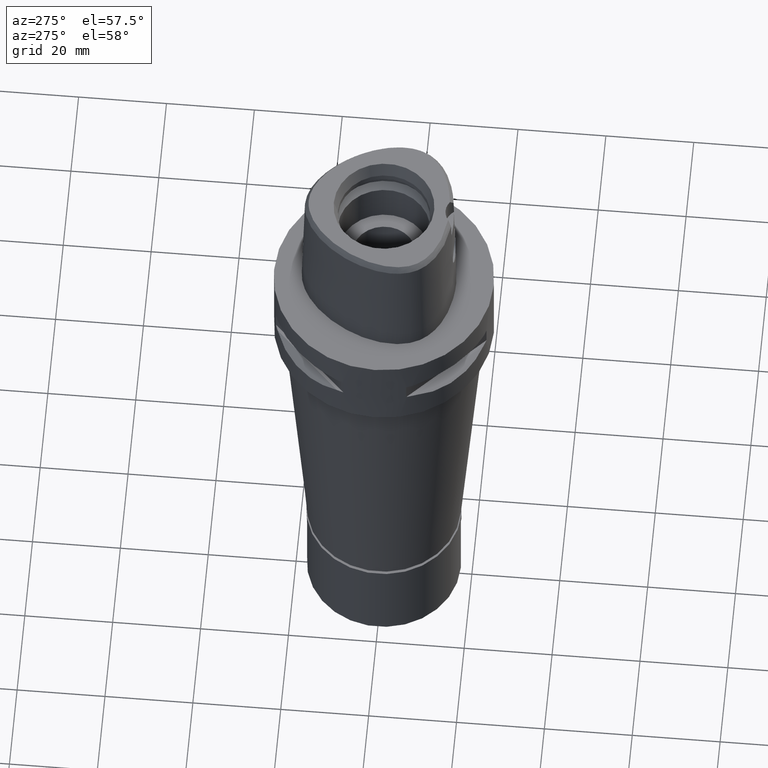
[diagram: clean part render]
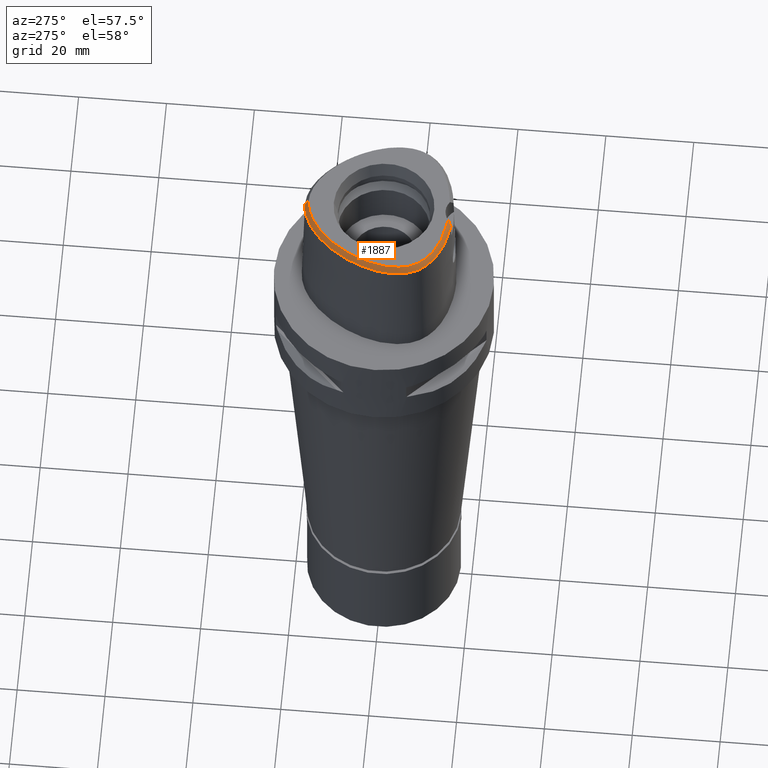
[diagram: same view with one face highlighted and labeled with its STEP entity id]
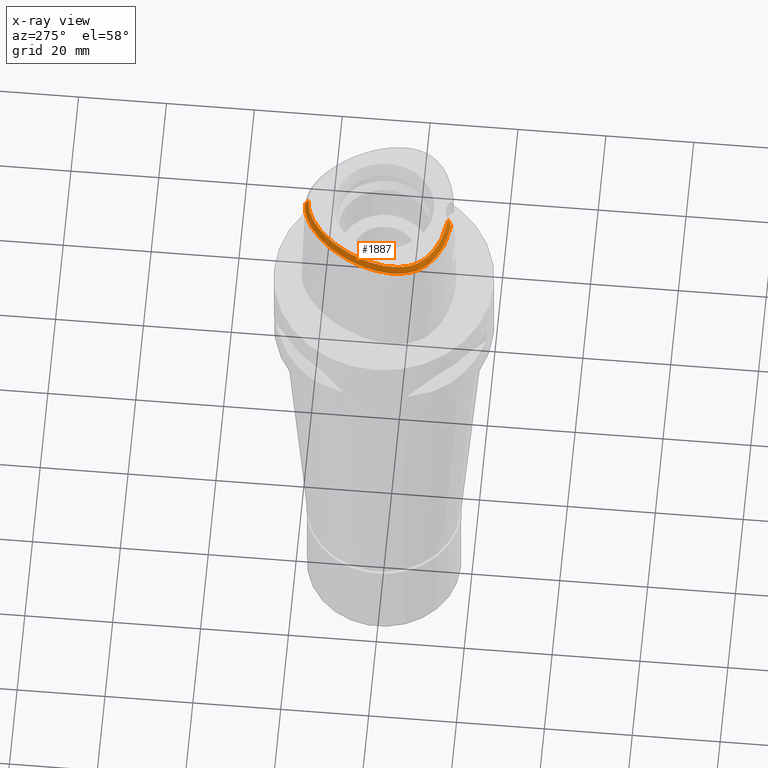
[diagram: x-ray of the same camera — body ghosted, the highlighted face saturated]
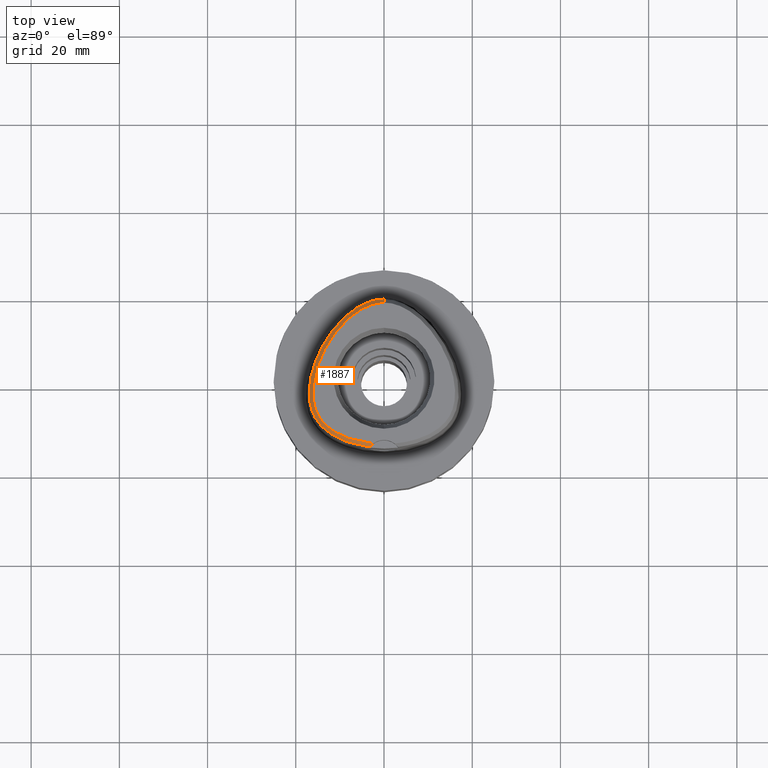
[diagram: same view with one face highlighted and labeled with its STEP entity id]
A machine part, auxiliary view. The second image highlights one B-rep face of the part: STEP entity #1887.
The next image is the same camera in x-ray: the body ghosted, the highlighted face saturated — about 0% of this face is hidden behind the body in this view.
A second angle (top view) of the same face is appended — the face is thin or edge-on in the first view.
In plain terms, the highlighted face is a freeform B-spline surface patch.
Its self-contained STEP definition (entity closure, byte-faithful):
#18 = CARTESIAN_POINT ( 'NONE',  ( -7.639779131636999843, 13.77262590923000118, 30.16755057703000276 ) ) ;
#42 = CARTESIAN_POINT ( 'NONE',  ( -5.210497867991000120, 15.50538924658000006, 30.16754997332999721 ) ) ;
#55 = CARTESIAN_POINT ( 'NONE',  ( -7.523733151595044966, 15.26501052509501477, 28.52071192347001727 ) ) ;
#64 = CARTESIAN_POINT ( 'NONE',  ( -9.846445204711999466, 12.60582307778999933, 28.95792110541999875 ) ) ;
#81 = CARTESIAN_POINT ( 'NONE',  ( -5.632414951356000898, -15.25944411046999960, 28.35310572205999691 ) ) ;
#86 = CARTESIAN_POINT ( 'NONE',  ( -1.823276377017999828, 17.21188074159000081, 29.56273537917000027 ) ) ;
#110 = CARTESIAN_POINT ( 'NONE',  ( -12.89654178714999944, 7.995817438980999725, 29.56273529346999851 ) ) ;
#131 = CARTESIAN_POINT ( 'NONE',  ( -15.10082545737000181, 4.330498760987000040, 28.95791983322999741 ) ) ;
#134 = CARTESIAN_POINT ( 'NONE',  ( -13.18915979441498010, -10.65722997876661893, 30.00000000000300560 ) ) ;
#155 = CARTESIAN_POINT ( 'NONE',  ( -16.03151795269000246, -3.534428194271999946, 30.16755060849999737 ) ) ;
#180 = CARTESIAN_POINT ( 'NONE',  ( -16.66794665513000240, -4.421519624942999549, 28.95792058958000226 ) ) ;
#202 = CARTESIAN_POINT ( 'NONE',  ( -16.28461055573999872, -1.630954051201000121, 29.56273514257000201 ) ) ;
#227 = CARTESIAN_POINT ( 'NONE',  ( -15.82868006878000067, -7.952737281584000506, 28.95792018566999815 ) ) ;
#261 = CARTESIAN_POINT ( 'NONE',  ( -14.68301384047999925, -8.695764281007001273, 30.16755062074999927 ) ) ;
#286 = CARTESIAN_POINT ( 'NONE',  ( -16.38696586428000046, -7.458126248342999531, 28.35310487737000074 ) ) ;
#316 = CARTESIAN_POINT ( 'NONE',  ( -12.58326865087000002, -12.34321894151999821, 28.35310542868999661 ) ) ;
#337 = CARTESIAN_POINT ( 'NONE',  ( -9.710311512310999760, -12.84306151673999885, 30.16755066037999811 ) ) ;
#338 = CARTESIAN_POINT ( 'NONE',  ( -16.12543283908568270, -3.535877041748258343, 30.00000000000216716 ) ) ;
#343 = CARTESIAN_POINT ( 'NONE',  ( 0.3016676591158000131, 17.05531115649999663, 30.16755063117999924 ) ) ;
#365 = CARTESIAN_POINT ( 'NONE',  ( -5.552509327625999802, 16.09091101313000038, 28.95792405463999941 ) ) ;
#382 = CARTESIAN_POINT ( 'NONE',  ( -2.458047802172000029, -15.72790595030999761, 28.35310552934999961 ) ) ;
#388 = CARTESIAN_POINT ( 'NONE',  ( -5.723515057443000487, 16.38367189639999921, 28.35311109529000362 ) ) ;
#408 = CARTESIAN_POINT ( 'NONE',  ( -3.152079676332999902, -14.97894746234999985, 29.56273546096000260 ) ) ;
#416 = CARTESIAN_POINT ( 'NONE',  ( -5.381503597807999917, 15.79815012984999889, 29.56273701398000142 ) ) ;
#434 = CARTESIAN_POINT ( 'NONE',  ( -1.990649989869999859, -15.76438362355999878, 28.35310551737000040 ) ) ;
#440 = CARTESIAN_POINT ( 'NONE',  ( -3.734971165628999668, 16.24915067615000197, 30.16755053581000112 ) ) ;
#452 = CARTESIAN_POINT ( 'NONE',  ( -3.738627773282205080, -15.49270868799680301, 28.52071192347001727 ) ) ;
#461 = CARTESIAN_POINT ( 'NONE',  ( -0.5613335724047000541, 17.04642045710999909, 30.16755065579999950 ) ) ;
#477 = CARTESIAN_POINT ( 'NONE',  ( -16.85489160761523664, -5.354527567564993262, 28.52071192347001727 ) ) ;
#484 = CARTESIAN_POINT ( 'NONE',  ( -15.63320202522000280, 1.721486809195999834, 29.56273623881000034 ) ) ;
#509 = CARTESIAN_POINT ( 'NONE',  ( -11.84930031526000072, 9.007999783756998724, 30.16755050273000194 ) ) ;
#512 = CARTESIAN_POINT ( 'NONE',  ( -8.809985523416104414, -13.33678107331211038, 30.00000000000050093 ) ) ;
#528 = CARTESIAN_POINT ( 'NONE',  ( -16.62179471705999845, -1.595620894735999995, 28.95791959471999633 ) ) ;
#555 = CARTESIAN_POINT ( 'NONE',  ( -14.47185990318000037, 4.077357645241000306, 30.16755065205999742 ) ) ;
#558 = CARTESIAN_POINT ( 'NONE',  ( -15.29229544369395022, -7.721097396977294913, 29.99999999999280220 ) ) ;
#579 = CARTESIAN_POINT ( 'NONE',  ( -13.60082244959999898, 6.750709203679999604, 29.56273539016000029 ) ) ;
#603 = CARTESIAN_POINT ( 'NONE',  ( -7.962095281401999181, -14.27055544569000212, 28.95792202591999853 ) ) ;
#619 = EDGE_CURVE ( 'NONE', #4483, #4556, #1121, .T. ) ;
#633 = CARTESIAN_POINT ( 'NONE',  ( -13.35638512230000075, -10.83648599571000126, 29.56273525271999603 ) ) ;
#663 = CARTESIAN_POINT ( 'NONE',  ( -13.59488471462000092, -10.11923557399999929, 30.16755064084999916 ) ) ;
#687 = CARTESIAN_POINT ( 'NONE',  ( -12.59263163459000090, -11.05462559839000036, 30.16755064872999981 ) ) ;
#689 = CARTESIAN_POINT ( 'NONE',  ( -15.02099409650743134, 2.867135356160664728, 29.99999999999567279 ) ) ;
#711 = CARTESIAN_POINT ( 'NONE',  ( -15.74742351977999988, -7.232438932254999564, 29.56273536307000072 ) ) ;
#714 = CARTESIAN_POINT ( 'NONE',  ( -14.55898035934633761, 4.112421202110880358, 29.99999999999424460 ) ) ;
#718 = CARTESIAN_POINT ( 'NONE',  ( 0.5143060122256000177, 18.06220053667999892, 28.35310427733000083 ) ) ;
#757 = CARTESIAN_POINT ( 'NONE',  ( -6.806069691345999928, 14.44045714880000020, 30.16755069746999851 ) ) ;
#764 = VERTEX_POINT ( 'NONE', #1832 ) ;
#766 = B_SPLINE_CURVE_WITH_KNOTS ( 'NONE', 3,
 ( #3946, #4020, #4751, #1749, #3223, #4349, #2838, #512, #1310, #2049, #923, #2464, #3272, #134, #3992, #1678, #4797, #3199, #4726, #558, #3620, #1286, #2892, #978, #3345, #338, #2619, #1800, #3399, #2641, #3002, #689, #714, #4151, #1445, #4528, #1472, #2538, #2971, #1873, #4847, #4901, #2568, #2942, #4504, #1518, #4476, #4071, #1415, #4100, #3751, #1001, #1063, #4451 ),
 .UNSPECIFIED., .F., .F.,
 ( 4, 1, 1, 1, 1, 1, 1, 1, 1, 1, 1, 1, 1, 1, 1, 1, 1, 1, 1, 1, 1, 1, 1, 1, 1, 1, 1, 1, 1, 1, 1, 1, 1, 1, 1, 1, 1, 1, 1, 1, 1, 1, 1, 1, 1, 1, 1, 1, 1, 1, 1, 4 ),
 ( 0.0000000000000000000, 0.005566907331700066131, 0.02545556918509994659, 0.04534423103860008020, 0.06523289289190004059, 0.08512155474529992105, 0.1050102165987000236, 0.1248988784521999351, 0.1447875403055000065, 0.1646762021588999980, 0.1845648640122999895, 0.2044535258655999499, 0.2243421877191000835, 0.2442308495724999640, 0.2641195114257999244, 0.2840081732792000269, 0.3038968351325999073, 0.3237854969860000098, 0.3436741588394000013, 0.3635628206927999928, 0.3834514825461999843, 0.4033401443995000557, 0.4232288062529999673, 0.4431174681064000698, 0.4630061299597000302, 0.4828947918130999106, 0.5027834536666000442, 0.5226721155199000046, 0.5425607773732999961, 0.5624494392267000986, 0.5823381010799999480, 0.6022267629334999706, 0.6221154247869000731, 0.6420040866403000646, 0.6618927484936000250, 0.6817814103470000164, 0.7016700722005000390, 0.7215587340537999994, 0.7414473959071999909, 0.7613360577605999824, 0.7812247196139999739, 0.8011133814673999654, 0.8210020433207999568, 0.8408907051741000283, 0.8607793670275000197, 0.8806680288810000423, 0.9005566907343299787, 0.9204453525877199782, 0.9403340144411099777, 0.9602226762944999772, 0.9801113381478899766, 1.000000000000000000 ),
 .UNSPECIFIED. ) ;
#778 = CARTESIAN_POINT ( 'NONE',  ( -2.427889251345999977, -15.39039848382999942, 28.95792053275999933 ) ) ;
#783 = CARTESIAN_POINT ( 'NONE',  ( -3.384816160101999927, 17.47624886148000201, 28.35310357406000037 ) ) ;
#806 = CARTESIAN_POINT ( 'NONE',  ( -4.609046972602000025, 16.21701338968999906, 29.56273667107000236 ) ) ;
#829 = CARTESIAN_POINT ( 'NONE',  ( -7.215083212366999454, 14.98125909569000136, 28.95791955081999802 ) ) ;
#850 = CARTESIAN_POINT ( 'NONE',  ( -16.27342963407000198, -6.693200545318000572, 28.95791988805000017 ) ) ;
#875 = CARTESIAN_POINT ( 'NONE',  ( -13.47765485641999916, 8.345064438473999147, 28.35310461522000125 ) ) ;
#899 = CARTESIAN_POINT ( 'NONE',  ( -14.93211420629000052, 2.836803727226000049, 30.16755063256999847 ) ) ;
#920 = CARTESIAN_POINT ( 'NONE',  ( -13.90017523472000072, 6.909783120898000064, 28.95792018476999985 ) ) ;
#923 = CARTESIAN_POINT ( 'NONE',  ( -11.36350786442183214, -12.05063008428340510, 29.99999999999580780 ) ) ;
#946 = CARTESIAN_POINT ( 'NONE',  ( -16.81324114178000073, -0.4670231989860000321, 28.35310569049000051 ) ) ;
#974 = CARTESIAN_POINT ( 'NONE',  ( -12.38585269803000166, -12.06755587250999895, 28.95792046907000028 ) ) ;
#978 = CARTESIAN_POINT ( 'NONE',  ( -15.99949242929648463, -5.153835065648535441, 30.00000000000461498 ) ) ;
#997 = CARTESIAN_POINT ( 'NONE',  ( -6.804410641952000738, -14.62331478059999945, 28.95792248176000072 ) ) ;
#1001 = CARTESIAN_POINT ( 'NONE',  ( -0.5679008307148614154, 17.14013367087316553, 29.99999999999713651 ) ) ;
#1032 = CARTESIAN_POINT ( 'NONE',  ( -15.42765234752999959, -7.119595274211000024, 30.16755060591999893 ) ) ;
#1061 = CARTESIAN_POINT ( 'NONE',  ( -13.02189219035000001, -11.57961736640000083, 28.95791985396999735 ) ) ;
#1063 = CARTESIAN_POINT ( 'NONE',  ( -0.1909045559979745676, 17.15328888648515360, 29.99999999999984723 ) ) ;
#1084 = CARTESIAN_POINT ( 'NONE',  ( -10.71727344415999994, -12.71267893831999984, 29.56273526993999923 ) ) ;
#1121 = B_SPLINE_CURVE_WITH_KNOTS ( 'NONE', 3,
 ( #4584, #1142, #2672, #3785 ),
 .UNSPECIFIED., .F., .F.,
 ( 4, 4 ),
 ( 0.0000000000000000000, 1.000000000000000000 ),
 .UNSPECIFIED. ) ;
#1136 = CARTESIAN_POINT ( 'NONE',  ( -3.045879743975000054, 16.51714670362999726, 30.16755073851999924 ) ) ;
#1140 = EDGE_CURVE ( 'NONE', #4483, #764, #766, .T. ) ;
#1142 = CARTESIAN_POINT ( 'NONE',  ( -2.674237912657983163, -15.00654602984668351, 29.59847415412357208 ) ) ;
#1152 = CARTESIAN_POINT ( 'NONE',  ( -2.157572310486000067, -15.75234476550999752, 28.35310553889999952 ) ) ;
#1160 = CARTESIAN_POINT ( 'NONE',  ( -8.725996232029000765, 13.25178579633000098, 29.56273599062000201 ) ) ;
#1176 = CARTESIAN_POINT ( 'NONE',  ( -3.191919535121999996, -15.31550604413000016, 28.95792035350999782 ) ) ;
#1183 = CARTESIAN_POINT ( 'NONE',  ( -9.599435430154999338, 12.37363609003999976, 29.56273577646999939 ) ) ;
#1201 = CARTESIAN_POINT ( 'NONE',  ( -15.58740380353674837, -8.999391780897031623, 28.52071192347001727 ) ) ;
#1212 = CARTESIAN_POINT ( 'NONE',  ( -10.72572252327999998, 11.61917264232999969, 28.95791961538999715 ) ) ;
#1213 = LINE ( 'NONE', #2745, #3466 ) ;
#1237 = CARTESIAN_POINT ( 'NONE',  ( -7.010576451856000091, 14.71085812223999945, 29.56273512415000226 ) ) ;
#1248 = CARTESIAN_POINT ( 'NONE',  ( -16.79165457291105668, -0.3537785057483363582, 28.52071192347001727 ) ) ;
#1258 = CARTESIAN_POINT ( 'NONE',  ( -15.57378198289999993, 3.055782720697999721, 28.95791995444999856 ) ) ;
#1282 = CARTESIAN_POINT ( 'NONE',  ( -12.60598525252000002, 7.821193939234999171, 30.16755063259000025 ) ) ;
#1286 = CARTESIAN_POINT ( 'NONE',  ( -15.71065119879044225, -6.536303815288952102, 29.99999999999154809 ) ) ;
#1299 = ORIENTED_EDGE ( 'NONE', *, *, #1140, .T. ) ;
#1301 = CARTESIAN_POINT ( 'NONE',  ( -16.47905549556985960, -6.962316292879828339, 28.52071192347001727 ) ) ;
#1307 = CARTESIAN_POINT ( 'NONE',  ( -17.00598922109999833, -4.447751773904000672, 28.35310561913999905 ) ) ;
#1310 = CARTESIAN_POINT ( 'NONE',  ( -9.750168658359122276, -12.92810664734103021, 30.00000000000341061 ) ) ;
#1329 = CARTESIAN_POINT ( 'NONE',  ( -15.78105460849999986, -5.852921262458000484, 30.16755065386999846 ) ) ;
#1359 = CARTESIAN_POINT ( 'NONE',  ( -15.94679730711999888, -6.602138875558999587, 29.56273526564999798 ) ) ;
#1380 = EDGE_LOOP ( 'NONE', ( #1299, #2438, #2977, #2947 ) ) ;
#1390 = CARTESIAN_POINT ( 'NONE',  ( -9.998059913266001075, -13.45704427179000007, 28.95791978155000024 ) ) ;
#1412 = CARTESIAN_POINT ( 'NONE',  ( -13.84216780035999861, -10.35125735799999980, 29.56273527190999673 ) ) ;
#1415 = CARTESIAN_POINT ( 'NONE',  ( -2.411640998825535398, 16.81591728050764445, 29.99999999999352696 ) ) ;
#1442 = CARTESIAN_POINT ( 'NONE',  ( -11.04110826670000023, -13.30843926314000036, 28.35310452662000102 ) ) ;
#1445 = CARTESIAN_POINT ( 'NONE',  ( -13.38439869301239682, 6.635703175839481105, 29.99999999999850431 ) ) ;
#1470 = CARTESIAN_POINT ( 'NONE',  ( -9.152316934488998967, -14.19411612484999985, 28.35310462320000369 ) ) ;
#1472 = CARTESIAN_POINT ( 'NONE',  ( -11.92713521269140209, 9.060544494662435611, 29.99999999999303668 ) ) ;
#1491 = CARTESIAN_POINT ( 'NONE',  ( -14.00782560703000001, -9.647379196538999224, 30.16755057970000209 ) ) ;
#1518 = CARTESIAN_POINT ( 'NONE',  ( -4.498660734198359989, 15.99814720005971225, 29.99999999999687361 ) ) ;
#1524 = CARTESIAN_POINT ( 'NONE',  ( -3.271837354725999791, 17.15654814219999835, 28.95791929554999911 ) ) ;
#1553 = CARTESIAN_POINT ( 'NONE',  ( -4.001654244337000677, 16.87264368793999836, 28.95792055620999861 ) ) ;
#1572 = CARTESIAN_POINT ( 'NONE',  ( -2.104707806306000073, -15.07672396741000043, 29.56273553871000104 ) ) ;
#1578 = CARTESIAN_POINT ( 'NONE',  ( -0.04216019817055000063, 17.40364861451999801, 29.56273536419999814 ) ) ;
#1592 = CARTESIAN_POINT ( 'NONE',  ( -13.75951393052779004, 7.944084103042361455, 28.52071192347001727 ) ) ;
#1603 = CARTESIAN_POINT ( 'NONE',  ( -10.09345497926999968, 12.83801006552999979, 28.35310643437000167 ) ) ;
#1629 = CARTESIAN_POINT ( 'NONE',  ( -1.892982786909999993, 17.54373329118000058, 28.95792015860000035 ) ) ;
#1652 = CARTESIAN_POINT ( 'NONE',  ( -14.54109007758000160, 5.622425361652999776, 28.95792058829000126 ) ) ;
#1674 = CARTESIAN_POINT ( 'NONE',  ( -15.95952690591000156, 1.813344835412999956, 28.95792220726000110 ) ) ;
#1678 = CARTESIAN_POINT ( 'NONE',  ( -14.08052509618156023, -9.706873108417822138, 29.99999999999365485 ) ) ;
#1699 = CARTESIAN_POINT ( 'NONE',  ( -16.70953585073999648, -3.544888138995999860, 28.95792010419999940 ) ) ;
#1724 = CARTESIAN_POINT ( 'NONE',  ( -16.57791086117000035, -5.235871008917999170, 28.95792000029000235 ) ) ;
#1746 = CARTESIAN_POINT ( 'NONE',  ( -12.69219310217999919, 9.577019070413999913, 28.35310589158000028 ) ) ;
#1749 = CARTESIAN_POINT ( 'NONE',  ( -4.150496093831221422, -14.59917355180221676, 30.00000000000014921 ) ) ;
#1770 = CARTESIAN_POINT ( 'NONE',  ( -14.92260353368000025, -9.564807021807999021, 28.95791987216999885 ) ) ;
#1797 = CARTESIAN_POINT ( 'NONE',  ( -16.13999362889000011, -8.087179310243000074, 28.35310498080999864 ) ) ;
#1800 = CARTESIAN_POINT ( 'NONE',  ( -16.04083576397482958, -1.656498942829153220, 29.99999999999758415 ) ) ;
#1820 = CARTESIAN_POINT ( 'NONE',  ( -14.27025234636999862, -9.862137147207999277, 29.56273543148000016 ) ) ;
#1832 = CARTESIAN_POINT ( 'NONE',  ( -6.301949014362000499E-11, 17.15328888647999861, 30.00000000000000000 ) ) ;
#1848 = CARTESIAN_POINT ( 'NONE',  ( -14.33673397182000109, -10.81530092600999993, 28.35310453401000075 ) ) ;
#1872 = CARTESIAN_POINT ( 'NONE',  ( -10.14193411373999965, -13.76403564931000112, 28.35310434213000264 ) ) ;
#1873 = CARTESIAN_POINT ( 'NONE',  ( -9.420854217683398701, 12.20577134109680451, 29.99999999999550226 ) ) ;
#1887 = ADVANCED_FACE ( 'NONE', ( #2603 ), #2526, .F. ) ;
#1900 = CARTESIAN_POINT ( 'NONE',  ( -9.193697530592999101, 13.74267279054000035, 28.35310724096000001 ) ) ;
#1923 = CARTESIAN_POINT ( 'NONE',  ( -0.04057199707807999933, 17.06459098961999743, 30.16755060548999978 ) ) ;
#1944 = CARTESIAN_POINT ( 'NONE',  ( -1.966279790551999751, -15.42642453240999956, 28.95792052518000048 ) ) ;
#1951 = CARTESIAN_POINT ( 'NONE',  ( -2.661459415975000020, 17.70479818808999894, 28.35310441543999715 ) ) ;
#1972 = CARTESIAN_POINT ( 'NONE',  ( -8.079184855096999129, 14.28901572344999948, 28.95792029992000138 ) ) ;
#1998 = CARTESIAN_POINT ( 'NONE',  ( -0.6324519888356000541, 18.06126334286000201, 28.35310438708000191 ) ) ;
#2012 = CARTESIAN_POINT ( 'NONE',  ( -15.84228689413313695, 3.460033471612402156, 28.52071192347001727 ) ) ;
#2022 = CARTESIAN_POINT ( 'NONE',  ( -16.37052690172000169, -3.539658166634000125, 29.56273535635000016 ) ) ;
#2040 = CARTESIAN_POINT ( 'NONE',  ( -0.6295828121024585888, 17.98203011041520938, 28.52071192347001727 ) ) ;
#2046 = CARTESIAN_POINT ( 'NONE',  ( -17.03509038394000186, -2.588165975781999695, 28.35310457842999909 ) ) ;
#2049 = CARTESIAN_POINT ( 'NONE',  ( -10.60021164902773094, -12.49731984708638421, 29.99999999999457145 ) ) ;
#2067 = CARTESIAN_POINT ( 'NONE',  ( -16.95897887838000173, -1.560287738269999780, 28.35310404687999863 ) ) ;
#2095 = CARTESIAN_POINT ( 'NONE',  ( -15.99186152320000076, -4.369055327019999879, 30.16755053046000157 ) ) ;
#2121 = CARTESIAN_POINT ( 'NONE',  ( -15.41530823446000120, 4.457069318860000351, 28.35310442380999874 ) ) ;
#2143 = CARTESIAN_POINT ( 'NONE',  ( -14.95803488648000013, -8.206719025010999147, 30.16755067021999892 ) ) ;
#2169 = CARTESIAN_POINT ( 'NONE',  ( -10.87919085543000008, -13.01055910072999922, 28.95791989827999657 ) ) ;
#2201 = CARTESIAN_POINT ( 'NONE',  ( -8.069675523791000060, -14.59204947293000032, 28.35310788912999769 ) ) ;
#2221 = EDGE_CURVE ( 'NONE', #2515, #764, #1213, .T. ) ;
#2225 = CARTESIAN_POINT ( 'NONE',  ( -14.36950652800000050, -9.172309815767999197, 30.16755064579999868 ) ) ;
#2250 = CARTESIAN_POINT ( 'NONE',  ( -15.19915203651999924, -9.761055624826999733, 28.35310448535999939 ) ) ;
#2272 = CARTESIAN_POINT ( 'NONE',  ( -2.078275554215999854, -14.73891356836000099, 30.16755053862000224 ) ) ;
#2281 = CARTESIAN_POINT ( 'NONE',  ( -11.58512512766999869, 10.54313260278000008, 28.95792042535999755 ) ) ;
#2302 = CARTESIAN_POINT ( 'NONE',  ( -0.04533660035547999734, 18.08176386431999916, 28.35310488163000286 ) ) ;
#2322 = CARTESIAN_POINT ( 'NONE',  ( -2.131140058395999848, -15.41453436645999986, 28.95792053881000072 ) ) ;
#2328 = CARTESIAN_POINT ( 'NONE',  ( -1.147139580730999864, 16.98558699198999733, 30.16755066244999739 ) ) ;
#2351 = CARTESIAN_POINT ( 'NONE',  ( -6.183491382264000080, 15.29784699104000012, 29.56273632893999803 ) ) ;
#2365 = CARTESIAN_POINT ( 'NONE',  ( -4.242585999573000421, -15.17595441231999942, 28.95791958882999850 ) ) ;
#2371 = CARTESIAN_POINT ( 'NONE',  ( -10.98495199808999878, 11.83762474248000096, 28.35310407955000045 ) ) ;
#2383 = CARTESIAN_POINT ( 'NONE',  ( -11.33338053122041877, -13.08225253589758630, 28.52071192347001727 ) ) ;
#2393 = CARTESIAN_POINT ( 'NONE',  ( -15.80955159038999902, -0.6314304958861000072, 30.16755052318999830 ) ) ;
#2415 = CARTESIAN_POINT ( 'NONE',  ( -16.59088120162000024, 0.6901894228970000267, 28.35310862703999746 ) ) ;
#2431 = CARTESIAN_POINT ( 'NONE',  ( -13.06460239553432778, -11.91950051571991587, 28.52071192347001727 ) ) ;
#2436 = CARTESIAN_POINT ( 'NONE',  ( -16.47867795797999690, -0.5218256312860000135, 28.95792063472000066 ) ) ;
#2438 = ORIENTED_EDGE ( 'NONE', *, *, #2221, .F. ) ;
#2460 = CARTESIAN_POINT ( 'NONE',  ( -16.24220119905000104, -5.188257970883000780, 29.56273531275000011 ) ) ;
#2464 = CARTESIAN_POINT ( 'NONE',  ( -12.04571048959861024, -11.59259605426917616, 29.99999999999833022 ) ) ;
#2488 = CARTESIAN_POINT ( 'NONE',  ( -16.77683645440000149, -6.060744936274000239, 28.35310440605999815 ) ) ;
#2513 = CARTESIAN_POINT ( 'NONE',  ( -7.746934796624000086, -13.62756739119999949, 30.16755029951000111 ) ) ;
#2515 = VERTEX_POINT ( 'NONE', #4347 ) ;
#2526 = B_SPLINE_SURFACE_WITH_KNOTS ( 'NONE', 3, 3, ( 
 ( #3006, #4132, #4179, #718 ),
 ( #343, #3404, #3676, #3474 ),
 ( #1923, #1578, #4202, #2302 ),
 ( #461, #3897, #3522, #1998 ),
 ( #2328, #2689, #3449, #3424 ),
 ( #4226, #86, #1629, #2744 ),
 ( #3825, #3496, #3803, #1951 ),
 ( #1136, #4654, #1524, #783 ),
 ( #440, #3058, #1553, #3155 ),
 ( #3852, #806, #4578, #2668 ),
 ( #42, #416, #365, #388 ),
 ( #4682, #2351, #3876, #2718 ),
 ( #757, #1237, #829, #3106 ),
 ( #18, #3085, #1972, #4603 ),
 ( #4278, #1160, #4626, #1900 ),
 ( #4251, #1183, #64, #1603 ),
 ( #4955, #3130, #1212, #2371 ),
 ( #2767, #4297, #2281, #3568 ),
 ( #509, #4748, #4722, #1746 ),
 ( #1282, #110, #3639, #875 ),
 ( #3219, #579, #920, #3989 ),
 ( #4701, #3246, #1652, #2810 ),
 ( #555, #3174, #131, #2121 ),
 ( #899, #4369, #1258, #4346 ),
 ( #4395, #484, #1674, #3964 ),
 ( #2787, #3922, #4322, #2415 ),
 ( #2393, #4794, #2436, #946 ),
 ( #3943, #202, #528, #2067 ),
 ( #3593, #2888, #3546, #2046 ),
 ( #155, #2022, #1699, #3196 ),
 ( #2095, #3615, #180, #1307 ),
 ( #2835, #2460, #1724, #4769 ),
 ( #1329, #3269, #2861, #2488 ),
 ( #4014, #1359, #850, #4150 ),
 ( #1032, #711, #2969, #286 ),
 ( #2535, #4038, #227, #1797 ),
 ( #2143, #4124, #4822, #3666 ),
 ( #261, #4067, #3343, #3319 ),
 ( #2225, #4844, #1770, #2250 ),
 ( #1491, #1820, #3773, #4502 ),
 ( #663, #1412, #3293, #1848 ),
 ( #4925, #633, #4421, #3725 ),
 ( #687, #3748, #1061, #4098 ),
 ( #4869, #2618, #974, #316 ),
 ( #3375, #4448, #2940, #3695 ),
 ( #4900, #1084, #2169, #1442 ),
 ( #337, #4474, #1390, #1872 ),
 ( #2594, #2912, #3397, #1470 ),
 ( #2513, #2566, #603, #2201 ),
 ( #3000, #4527, #997, #2712 ),
 ( #4271, #3515, #3845, #81 ),
 ( #3021, #4620, #2365, #3796 ),
 ( #4945, #408, #1176, #2683 ),
 ( #3489, #4171, #778, #382 ),
 ( #2272, #1572, #2322, #1152 ),
 ( #4570, #4219, #1944, #434 ) ),
 .UNSPECIFIED., .F., .F., .F.,
 ( 4, 1, 1, 1, 1, 1, 1, 1, 1, 1, 1, 1, 1, 1, 1, 1, 1, 1, 1, 1, 1, 1, 1, 1, 1, 1, 1, 1, 1, 1, 1, 1, 1, 1, 1, 1, 1, 1, 1, 1, 1, 1, 1, 1, 1, 1, 1, 1, 1, 1, 1, 1, 1, 4 ),
 ( 4, 4 ),
 ( -0.01581534407490000141, 0.0000000000000000000, 0.01988866185210999907, 0.03977732370550000202, 0.05966598555888999456, 0.07955464741227999403, 0.09944330926566999351, 0.1193319711189999993, 0.1392206329725000080, 0.1591092948258999995, 0.1789979566792000154, 0.1988866185326000069, 0.2187752803859999984, 0.2386639422393999899, 0.2585526040928000091, 0.2784412659462000006, 0.2983299277995000165, 0.3182185896529999836, 0.3381072515063999750, 0.3579959133596999910, 0.3778845752130999824, 0.3977732370665000294, 0.4176618989199999965, 0.4375505607732999569, 0.4574392226267000039, 0.4773278844800999954, 0.4972165463333999558, 0.5171052081869000894, 0.5369938700402999698, 0.5568825318935999302, 0.5767711937470000327, 0.5966598556004999443, 0.6165485174538000157, 0.6364371793072000072, 0.6563258411605999987, 0.6762145030139999902, 0.6961031648674000927, 0.7159918267207999731, 0.7358804885742000756, 0.7557691504275000360, 0.7756578122808999165, 0.7955464741344000501, 0.8154351359877000105, 0.8353237978411000020, 0.8552124596944999935, 0.8751011215478000649, 0.8949897834012999764, 0.9148784452547000789, 0.9347671071080999594, 0.9546557689613999198, 0.9745444308149000534, 0.9944330926682999339, 1.000000000000000000, 1.006911813929000088 ),
 ( -0.08967702023760999730, 1.089711572971999942 ),
 .UNSPECIFIED. ) ;
#2535 = CARTESIAN_POINT ( 'NONE',  ( -15.20605294858000001, -7.683853224265999593, 30.16755059539000428 ) ) ;
#2538 = CARTESIAN_POINT ( 'NONE',  ( -11.11900396222796594, 10.19116357425113506, 30.00000000000013500 ) ) ;
#2566 = CARTESIAN_POINT ( 'NONE',  ( -7.854515039013000965, -13.94906141844999858, 29.56273616272000027 ) ) ;
#2568 = CARTESIAN_POINT ( 'NONE',  ( -6.862723739079719998, 14.51536572208311959, 29.99999999999890932 ) ) ;
#2594 = CARTESIAN_POINT ( 'NONE',  ( -8.775157661846000323, -13.24955814976999946, 30.16755063177999929 ) ) ;
#2603 = FACE_OUTER_BOUND ( 'NONE', #1380, .T. ) ;
#2618 = CARTESIAN_POINT ( 'NONE',  ( -12.18843674519999887, -11.79189280350000146, 29.56273550945000039 ) ) ;
#2619 = CARTESIAN_POINT ( 'NONE',  ( -16.11283982316489727, -2.629907404753974554, 29.99999999999617017 ) ) ;
#2641 = CARTESIAN_POINT ( 'NONE',  ( -15.68979199461199237, 0.4896967076515121309, 29.99999999999958078 ) ) ;
#2668 = CARTESIAN_POINT ( 'NONE',  ( -4.914414816005000297, 16.82247560391000007, 28.35310980375000156 ) ) ;
#2672 = CARTESIAN_POINT ( 'NONE',  ( -2.935844349986668878, -15.25651563093136076, 29.10537812861357310 ) ) ;
#2683 = CARTESIAN_POINT ( 'NONE',  ( -3.231759393911000089, -15.65206462589999958, 28.35310524606999749 ) ) ;
#2689 = CARTESIAN_POINT ( 'NONE',  ( -1.194109148778000007, 17.32142015968999615, 29.56273521553000094 ) ) ;
#2712 = CARTESIAN_POINT ( 'NONE',  ( -6.893888163019000537, -14.95030242202999915, 28.35310860951999956 ) ) ;
#2718 = CARTESIAN_POINT ( 'NONE',  ( -6.560047743528000019, 15.86175037379000052, 28.35310851519000153 ) ) ;
#2734 = CARTESIAN_POINT ( 'NONE',  ( -3.151832883024999780E-11, 17.98202997909999823, 28.52071728569000086 ) ) ;
#2744 = CARTESIAN_POINT ( 'NONE',  ( -1.962689196802000158, 17.87558584076999679, 28.35310493801999954 ) ) ;
#2745 = CARTESIAN_POINT ( 'NONE',  ( -3.151832883024999780E-11, 17.98202997909999823, 28.52071728569000086 ) ) ;
#2759 = CARTESIAN_POINT ( 'NONE',  ( -3.168920966622999824, -15.55911077538999976, 28.52071192346999950 ) ) ;
#2767 = CARTESIAN_POINT ( 'NONE',  ( -11.04405876347999893, 10.13457230410000065, 30.16755055686000020 ) ) ;
#2780 = CARTESIAN_POINT ( 'NONE',  ( -10.91764528034774528, 11.98972044748025567, 28.52071192347001727 ) ) ;
#2787 = CARTESIAN_POINT ( 'NONE',  ( -15.59811764295000103, 0.4692991271008999377, 30.16755022443999934 ) ) ;
#2810 = CARTESIAN_POINT ( 'NONE',  ( -14.84840943020000026, 5.765505642272000131, 28.35310561709999888 ) ) ;
#2820 = EDGE_CURVE ( 'NONE', #4556, #2515, #2822, .T. ) ;
#2822 = B_SPLINE_CURVE_WITH_KNOTS ( 'NONE', 3,
 ( #2759, #452, #4740, #3166, #2383, #2431, #3914, #3487, #1201, #3512, #1301, #477, #3121, #1248, #2012, #1592, #2780, #55, #4314, #2830, #2040, #2734 ),
 .UNSPECIFIED., .F., .F.,
 ( 4, 1, 1, 1, 1, 1, 1, 1, 1, 1, 1, 1, 1, 1, 1, 1, 1, 1, 1, 4 ),
 ( 0.0000000000000000000, 0.03108635432773702162, 0.1191694130251577666, 0.1632109423737096165, 0.2072524717224729085, 0.2512940010711304795, 0.2733147657454592094, 0.2953355304197880504, 0.3173562950942224736, 0.3393770597684456214, 0.3834185891172087746, 0.4274601184657605968, 0.4715016478145239165, 0.5595847065118388919, 0.6476677652092598381, 0.7357508239064691757, 0.8238338826037843177, 0.9119169413012050418, 0.9559584706498626128, 1.000000000000000000 ),
 .UNSPECIFIED. ) ;
#2830 = CARTESIAN_POINT ( 'NONE',  ( -1.893775706182446505, 17.84807082153692903, 28.52071192347001727 ) ) ;
#2835 = CARTESIAN_POINT ( 'NONE',  ( -15.90649153693000173, -5.140644932848999815, 30.16755062521000141 ) ) ;
#2838 = CARTESIAN_POINT ( 'NONE',  ( -7.776737509122646053, -13.71663015822269749, 29.99999999999758771 ) ) ;
#2861 = CARTESIAN_POINT ( 'NONE',  ( -16.44490917243000183, -5.991470378335000291, 28.95791982199999737 ) ) ;
#2888 = CARTESIAN_POINT ( 'NONE',  ( -16.35770517681000058, -2.618824700984000220, 29.56273528369999681 ) ) ;
#2892 = CARTESIAN_POINT ( 'NONE',  ( -15.87300767660346601, -5.872112237379162103, 29.99999999999801759 ) ) ;
#2912 = CARTESIAN_POINT ( 'NONE',  ( -8.900877419393999901, -13.56441080812999900, 29.56273529558999869 ) ) ;
#2940 = CARTESIAN_POINT ( 'NONE',  ( -11.67332756032999974, -12.54588316859999964, 28.95792034523000069 ) ) ;
#2942 = CARTESIAN_POINT ( 'NONE',  ( -6.047371482394870768, 15.09400374235270625, 29.99999999999928946 ) ) ;
#2947 = ORIENTED_EDGE ( 'NONE', *, *, #619, .F. ) ;
#2969 = CARTESIAN_POINT ( 'NONE',  ( -16.06719469203000372, -7.345282590299000880, 28.95792012021999895 ) ) ;
#2971 = CARTESIAN_POINT ( 'NONE',  ( -10.27907733182250638, 11.24278573582781959, 29.99999999999191047 ) ) ;
#2977 = ORIENTED_EDGE ( 'NONE', *, *, #2820, .F. ) ;
#3000 = CARTESIAN_POINT ( 'NONE',  ( -6.625455599819999541, -13.96933949774000006, 30.16755022623000215 ) ) ;
#3002 = CARTESIAN_POINT ( 'NONE',  ( -15.39727819201224790, 1.655076005305748721, 30.00000000000223110 ) ) ;
#3006 = CARTESIAN_POINT ( 'NONE',  ( 0.4582603413231999823, 17.04728509707999962, 30.16755066696000043 ) ) ;
#3021 = CARTESIAN_POINT ( 'NONE',  ( -4.135689436677999709, -14.50643595602000069, 30.16755069135999889 ) ) ;
#3058 = CARTESIAN_POINT ( 'NONE',  ( -3.868312704982999950, 16.56089718203999794, 29.56273554600999987 ) ) ;
#3085 = CARTESIAN_POINT ( 'NONE',  ( -7.859481993366999930, 14.03082081634000033, 29.56273543847000340 ) ) ;
#3106 = CARTESIAN_POINT ( 'NONE',  ( -7.419589972877000505, 15.25166006913000061, 28.35310397749000089 ) ) ;
#3121 = CARTESIAN_POINT ( 'NONE',  ( -16.99625270563292290, -3.273868231552949926, 28.52071192347001727 ) ) ;
#3130 = CARTESIAN_POINT ( 'NONE',  ( -10.46649304848000028, 11.40072054217999842, 29.56273515123999829 ) ) ;
#3155 = CARTESIAN_POINT ( 'NONE',  ( -4.134995783691000071, 17.18439019382999788, 28.35310556640000001 ) ) ;
#3166 = CARTESIAN_POINT ( 'NONE',  ( -8.702202515497985402, -14.36510996955648167, 28.52071192347001727 ) ) ;
#3174 = CARTESIAN_POINT ( 'NONE',  ( -14.78634268026999976, 4.203928203114000617, 29.56273524263999875 ) ) ;
#3196 = CARTESIAN_POINT ( 'NONE',  ( -17.04854479975999837, -3.550118111358000039, 28.35310485205999953 ) ) ;
#3199 = CARTESIAN_POINT ( 'NONE',  ( -14.76322153899681311, -8.744676018998326583, 29.99999999999945999 ) ) ;
#3219 = CARTESIAN_POINT ( 'NONE',  ( -13.30146966448000079, 6.591635286460999943, 30.16755059553999985 ) ) ;
#3223 = CARTESIAN_POINT ( 'NONE',  ( -5.437876102061158790, -14.35707869331224629, 30.00000000000277467 ) ) ;
#3246 = CARTESIAN_POINT ( 'NONE',  ( -14.23377072495000029, 5.479345081034000309, 29.56273555946999920 ) ) ;
#3260 = CARTESIAN_POINT ( 'NONE',  ( -3.168920966622999824, -15.55911077538999976, 28.52071192346999950 ) ) ;
#3269 = CARTESIAN_POINT ( 'NONE',  ( -16.11298189046999951, -5.922195820396000343, 29.56273523792999924 ) ) ;
#3272 = CARTESIAN_POINT ( 'NONE',  ( -12.65209017756327015, -11.12734424253392085, 29.99999999999941025 ) ) ;
#3293 = CARTESIAN_POINT ( 'NONE',  ( -14.08945088609000074, -10.58327914200000208, 28.95791990296000051 ) ) ;
#3319 = CARTESIAN_POINT ( 'NONE',  ( -15.55160225991999923, -9.225441231957001165, 28.35310473161999667 ) ) ;
#3343 = CARTESIAN_POINT ( 'NONE',  ( -15.26207278677000012, -9.048882248306998832, 28.95792002800000375 ) ) ;
#3345 = CARTESIAN_POINT ( 'NONE',  ( -16.08550869467089228, -4.376322360225842090, 30.00000000000364508 ) ) ;
#3375 = CARTESIAN_POINT ( 'NONE',  ( -11.31369356631999956, -11.97100091575999947, 30.16755056974000127 ) ) ;
#3397 = CARTESIAN_POINT ( 'NONE',  ( -9.026597176941999479, -13.87926346648999854, 28.95791995939000074 ) ) ;
#3399 = CARTESIAN_POINT ( 'NONE',  ( -15.90223487644449385, -0.6162487013688465742, 29.99999999999430500 ) ) ;
#3404 = CARTESIAN_POINT ( 'NONE',  ( 0.3141801428399999541, 17.39397213354000371, 29.56273529714000148 ) ) ;
#3424 = CARTESIAN_POINT ( 'NONE',  ( -1.288048284871999849, 17.99308649508000002, 28.35310432170999917 ) ) ;
#3449 = CARTESIAN_POINT ( 'NONE',  ( -1.241078716824999928, 17.65725332737999764, 28.95791976861999828 ) ) ;
#3466 = VECTOR ( 'NONE', #4279, 1000.000000000000000 ) ;
#3474 = CARTESIAN_POINT ( 'NONE',  ( 0.3392051102883000269, 18.07129408762000011, 28.35310462906000240 ) ) ;
#3487 = CARTESIAN_POINT ( 'NONE',  ( -15.07117015427914275, -9.793013966485473176, 28.52071192347001727 ) ) ;
#3489 = CARTESIAN_POINT ( 'NONE',  ( -2.367572149694999961, -14.71538355087000127, 30.16755053959000321 ) ) ;
#3496 = CARTESIAN_POINT ( 'NONE',  ( -2.477969909495999712, 17.05192270793000020, 29.56273524042000034 ) ) ;
#3512 = CARTESIAN_POINT ( 'NONE',  ( -16.01658395503594434, -8.155509241190108227, 28.52071192347001727 ) ) ;
#3515 = CARTESIAN_POINT ( 'NONE',  ( -5.489527818152000194, -14.59666437249999937, 29.56273558734000062 ) ) ;
#3522 = CARTESIAN_POINT ( 'NONE',  ( -0.6087458500253000171, 17.72298238093999956, 28.95791980998999904 ) ) ;
#3546 = CARTESIAN_POINT ( 'NONE',  ( -16.69639778038000344, -2.603495338382999957, 28.95791993105999751 ) ) ;
#3568 = CARTESIAN_POINT ( 'NONE',  ( -11.85565830976000079, 10.74741275211999891, 28.35310535961000156 ) ) ;
#3593 = CARTESIAN_POINT ( 'NONE',  ( -16.01901257324000127, -2.634154063584999594, 30.16755063632999878 ) ) ;
#3615 = CARTESIAN_POINT ( 'NONE',  ( -16.32990408917000025, -4.395287475982000203, 29.56273556001999836 ) ) ;
#3620 = CARTESIAN_POINT ( 'NONE',  ( -15.51623783590863681, -7.150856098906118063, 29.99999999999851852 ) ) ;
#3639 = CARTESIAN_POINT ( 'NONE',  ( -13.18709832177999886, 8.170440938727999480, 28.95791995434000299 ) ) ;
#3666 = CARTESIAN_POINT ( 'NONE',  ( -15.86189543028999971, -8.673652285113998772, 28.35310424533999907 ) ) ;
#3676 = CARTESIAN_POINT ( 'NONE',  ( 0.3266926265640999749, 17.73263311058000014, 28.95791996310000016 ) ) ;
#3695 = CARTESIAN_POINT ( 'NONE',  ( -11.85314455734000028, -12.83332429502000060, 28.35310523297000174 ) ) ;
#3725 = CARTESIAN_POINT ( 'NONE',  ( -13.81899023029999896, -11.33237229550999992, 28.35310446175000010 ) ) ;
#3748 = CARTESIAN_POINT ( 'NONE',  ( -12.80726191246999868, -11.31712148239999927, 29.56273525134999858 ) ) ;
#3751 = CARTESIAN_POINT ( 'NONE',  ( -1.160151454487788003, 17.07862209882918947, 29.99999999999571187 ) ) ;
#3773 = CARTESIAN_POINT ( 'NONE',  ( -14.53267908569999811, -10.07689509787999960, 28.95792028326000178 ) ) ;
#3785 = CARTESIAN_POINT ( 'NONE',  ( -3.168920966622999824, -15.55911077538999976, 28.52071192346999950 ) ) ;
#3796 = CARTESIAN_POINT ( 'NONE',  ( -4.296034281021000822, -15.51071364047999879, 28.35310403756999875 ) ) ;
#3803 = CARTESIAN_POINT ( 'NONE',  ( -2.569714662735999688, 17.37836044800999957, 28.95791982792999875 ) ) ;
#3825 = CARTESIAN_POINT ( 'NONE',  ( -2.386225156256999824, 16.72548496783999639, 30.16755065290999838 ) ) ;
#3845 = CARTESIAN_POINT ( 'NONE',  ( -5.560971384753999658, -14.92805424147999993, 28.95792065470000054 ) ) ;
#3852 = CARTESIAN_POINT ( 'NONE',  ( -4.456363050901000378, 15.91428228259000122, 30.16755010471999654 ) ) ;
#3876 = CARTESIAN_POINT ( 'NONE',  ( -6.371769562895999606, 15.57979868241999988, 28.95792242205999756 ) ) ;
#3897 = CARTESIAN_POINT ( 'NONE',  ( -0.5850397112149999801, 17.38470141903000155, 29.56273523288999883 ) ) ;
#3914 = CARTESIAN_POINT ( 'NONE',  ( -14.26907056455322653, -10.79012254419304995, 28.52071192347001727 ) ) ;
#3922 = CARTESIAN_POINT ( 'NONE',  ( -15.92903882917000224, 0.5429292256996000043, 29.56273635863999871 ) ) ;
#3943 = CARTESIAN_POINT ( 'NONE',  ( -15.94742639441000165, -1.666287207667000114, 30.16755069040999615 ) ) ;
#3946 = CARTESIAN_POINT ( 'NONE',  ( -2.406542353497000075, -14.80491723099000012, 30.00000000000000000 ) ) ;
#3964 = CARTESIAN_POINT ( 'NONE',  ( -16.28585178660999944, 1.905202861630999944, 28.35310817571000186 ) ) ;
#3989 = CARTESIAN_POINT ( 'NONE',  ( -14.19952801982999979, 7.068857038117000613, 28.35310497939000030 ) ) ;
#3992 = CARTESIAN_POINT ( 'NONE',  ( -13.66338899148723662, -10.18351204678365640, 29.99999999999783284 ) ) ;
#4014 = CARTESIAN_POINT ( 'NONE',  ( -15.62016498016000021, -6.511077205800000378, 30.16755064323999846 ) ) ;
#4020 = CARTESIAN_POINT ( 'NONE',  ( -2.535517866336086001, -14.79323888261984443, 29.99999999999943157 ) ) ;
#4038 = CARTESIAN_POINT ( 'NONE',  ( -15.51736650867999856, -7.818295252925000050, 29.56273539053000121 ) ) ;
#4052 = CARTESIAN_POINT ( 'NONE',  ( -2.406542353497000075, -14.80491723099000012, 30.00000000000000000 ) ) ;
#4067 = CARTESIAN_POINT ( 'NONE',  ( -14.97254331361999924, -8.872323264657000053, 29.56273532436999929 ) ) ;
#4071 = CARTESIAN_POINT ( 'NONE',  ( -3.077178008231403084, 16.60571267458110967, 30.00000000000219202 ) ) ;
#4098 = CARTESIAN_POINT ( 'NONE',  ( -13.23652246822000045, -11.84211325040999974, 28.35310445657999878 ) ) ;
#4100 = CARTESIAN_POINT ( 'NONE',  ( -1.772880577022306392, 16.97196055716062091, 29.99999999999816325 ) ) ;
#4124 = CARTESIAN_POINT ( 'NONE',  ( -15.25932173442000206, -8.362363445044998400, 29.56273519526000371 ) ) ;
#4132 = CARTESIAN_POINT ( 'NONE',  ( 0.4769422316239999571, 17.38559024361999761, 29.56273520374999819 ) ) ;
#4150 = CARTESIAN_POINT ( 'NONE',  ( -16.60006196102999709, -6.784262215076999780, 28.35310451044999880 ) ) ;
#4151 = CARTESIAN_POINT ( 'NONE',  ( -14.01158736113277570, 5.375902008631120665, 29.99999999999611688 ) ) ;
#4171 = CARTESIAN_POINT ( 'NONE',  ( -2.397730700521000013, -15.05289101735000123, 29.56273553617999994 ) ) ;
#4179 = CARTESIAN_POINT ( 'NONE',  ( 0.4956241219247999874, 17.72389539015000182, 28.95791974053999951 ) ) ;
#4202 = CARTESIAN_POINT ( 'NONE',  ( -0.04374839926301000298, 17.74270623941999858, 28.95792012291999740 ) ) ;
#4219 = CARTESIAN_POINT ( 'NONE',  ( -1.941909591234999954, -15.08846544125000122, 29.56273553299000056 ) ) ;
#4226 = CARTESIAN_POINT ( 'NONE',  ( -1.753569967125999884, 16.88002819200000104, 30.16755059975000108 ) ) ;
#4251 = CARTESIAN_POINT ( 'NONE',  ( -9.352425655597999210, 12.14144910229000018, 30.16755044750999915 ) ) ;
#4271 = CARTESIAN_POINT ( 'NONE',  ( -5.418084251549999841, -14.26527450351999882, 30.16755051999000159 ) ) ;
#4278 = CARTESIAN_POINT ( 'NONE',  ( -8.492145582747001598, 13.00634229921999996, 30.16755036544999768 ) ) ;
#4279 = DIRECTION ( 'NONE',  ( -1.857808335015029712E-11, -0.4887572537803078765, 0.8724198226067148010 ) ) ;
#4297 = CARTESIAN_POINT ( 'NONE',  ( -11.31459194556999925, 10.33885245343999948, 29.56273549111000420 ) ) ;
#4314 = CARTESIAN_POINT ( 'NONE',  ( -4.422474562381879082, 17.08283562090142382, 28.52071192347001727 ) ) ;
#4322 = CARTESIAN_POINT ( 'NONE',  ( -16.25996001540000080, 0.6165593242983000710, 28.95792249283999809 ) ) ;
#4346 = CARTESIAN_POINT ( 'NONE',  ( -15.89461587119999919, 3.165272217434000002, 28.35310461538999860 ) ) ;
#4347 = CARTESIAN_POINT ( 'NONE',  ( -3.151832883024999780E-11, 17.98202997909999823, 28.52071728569000086 ) ) ;
#4349 = CARTESIAN_POINT ( 'NONE',  ( -6.650243356160789432, -14.05992414833886350, 30.00000000000575895 ) ) ;
#4369 = CARTESIAN_POINT ( 'NONE',  ( -15.25294809459999890, 2.946293223961999885, 29.56273529350999851 ) ) ;
#4395 = CARTESIAN_POINT ( 'NONE',  ( -15.30687714452999870, 1.629628782979000157, 30.16755027035999959 ) ) ;
#4421 = CARTESIAN_POINT ( 'NONE',  ( -13.58768767629999985, -11.08442914560999881, 28.95791985722999584 ) ) ;
#4448 = CARTESIAN_POINT ( 'NONE',  ( -11.49351056332999832, -12.25844204217999867, 29.56273545748000231 ) ) ;
#4451 = CARTESIAN_POINT ( 'NONE',  ( -6.301949014362000499E-11, 17.15328888647999861, 30.00000000000000000 ) ) ;
#4474 = CARTESIAN_POINT ( 'NONE',  ( -9.854185712788000373, -13.15005289426999902, 29.56273522096000050 ) ) ;
#4476 = CARTESIAN_POINT ( 'NONE',  ( -3.771910472264178527, 16.33551310926228339, 29.99999999999038280 ) ) ;
#4483 = VERTEX_POINT ( 'NONE', #4052 ) ;
#4502 = CARTESIAN_POINT ( 'NONE',  ( -14.79510582503999849, -10.29165304853999885, 28.35310513503999985 ) ) ;
#4504 = CARTESIAN_POINT ( 'NONE',  ( -5.257871200567548975, 15.58649213537460021, 30.00000000000162359 ) ) ;
#4527 = CARTESIAN_POINT ( 'NONE',  ( -6.714933120885999251, -14.29632713916999975, 29.56273635399000099 ) ) ;
#4528 = CARTESIAN_POINT ( 'NONE',  ( -12.68647747557031025, 7.869569494475170401, 29.99999999999881339 ) ) ;
#4556 = VERTEX_POINT ( 'NONE', #3260 ) ;
#4570 = CARTESIAN_POINT ( 'NONE',  ( -1.917539391916999847, -14.75050635008999933, 30.16755054080000065 ) ) ;
#4578 = CARTESIAN_POINT ( 'NONE',  ( -4.761730894304000650, 16.51974449680000134, 28.95792323740999663 ) ) ;
#4584 = CARTESIAN_POINT ( 'NONE',  ( -2.406542353497000075, -14.80491723099000012, 30.00000000000000000 ) ) ;
#4603 = CARTESIAN_POINT ( 'NONE',  ( -8.298887716827000105, 14.54721063054999952, 28.35310516136999937 ) ) ;
#4620 = CARTESIAN_POINT ( 'NONE',  ( -4.189137718124999132, -14.84119518417000094, 29.56273514009999914 ) ) ;
#4626 = CARTESIAN_POINT ( 'NONE',  ( -8.959846881310999933, 13.49722929342999933, 28.95792161578999924 ) ) ;
#4654 = CARTESIAN_POINT ( 'NONE',  ( -3.158858549351000189, 16.83684742290999736, 29.56273501702999695 ) ) ;
#4682 = CARTESIAN_POINT ( 'NONE',  ( -5.995213201631000466, 15.01589529966999770, 30.16755023581999851 ) ) ;
#4701 = CARTESIAN_POINT ( 'NONE',  ( -13.92645137233000163, 5.336264800414999065, 30.16755053066000158 ) ) ;
#4722 = CARTESIAN_POINT ( 'NONE',  ( -12.41122883987000236, 9.387345974862000730, 28.95792076196999787 ) ) ;
#4726 = CARTESIAN_POINT ( 'NONE',  ( -15.04149970408363934, -8.249836848500549991, 29.99999999999760547 ) ) ;
#4740 = CARTESIAN_POINT ( 'NONE',  ( -5.902447850708018251, -15.16907854011706291, 28.52071192347001727 ) ) ;
#4748 = CARTESIAN_POINT ( 'NONE',  ( -12.13026457757000109, 9.197672879308999683, 29.56273563235000168 ) ) ;
#4751 = CARTESIAN_POINT ( 'NONE',  ( -3.123276563984805243, -14.73562494724766481, 29.99999999999808509 ) ) ;
#4769 = CARTESIAN_POINT ( 'NONE',  ( -16.91362052328999965, -5.283484046951999247, 28.35310468783000104 ) ) ;
#4794 = CARTESIAN_POINT ( 'NONE',  ( -16.14411477418000018, -0.5766280635860000503, 29.56273557896000170 ) ) ;
#4797 = CARTESIAN_POINT ( 'NONE',  ( -14.44611813752091578, -9.226676124712698268, 29.99999999999507949 ) ) ;
#4822 = CARTESIAN_POINT ( 'NONE',  ( -15.56060858234999955, -8.518007865078999430, 28.95791972030000139 ) ) ;
#4844 = CARTESIAN_POINT ( 'NONE',  ( -14.64605503084000127, -9.368558418787999997, 29.56273525898000187 ) ) ;
#4847 = CARTESIAN_POINT ( 'NONE',  ( -8.556928701964864104, 13.07433695898806292, 29.99999999999414158 ) ) ;
#4869 = CARTESIAN_POINT ( 'NONE',  ( -11.99102079235999874, -11.51622973449000042, 30.16755054983000406 ) ) ;
#4900 = CARTESIAN_POINT ( 'NONE',  ( -10.55535603289000157, -12.41479877591000047, 30.16755064160000188 ) ) ;
#4901 = CARTESIAN_POINT ( 'NONE',  ( -7.700642921101175098, 13.84415306342053498, 29.99999999999998934 ) ) ;
#4925 = CARTESIAN_POINT ( 'NONE',  ( -13.12508256829999809, -10.58854284581000016, 30.16755064820999621 ) ) ;
#4945 = CARTESIAN_POINT ( 'NONE',  ( -3.112239817545000342, -14.64238888057999866, 30.16755056841000027 ) ) ;
#4955 = CARTESIAN_POINT ( 'NONE',  ( -10.20726357366999970, 11.18226844203000070, 30.16755068707999854 ) ) ;